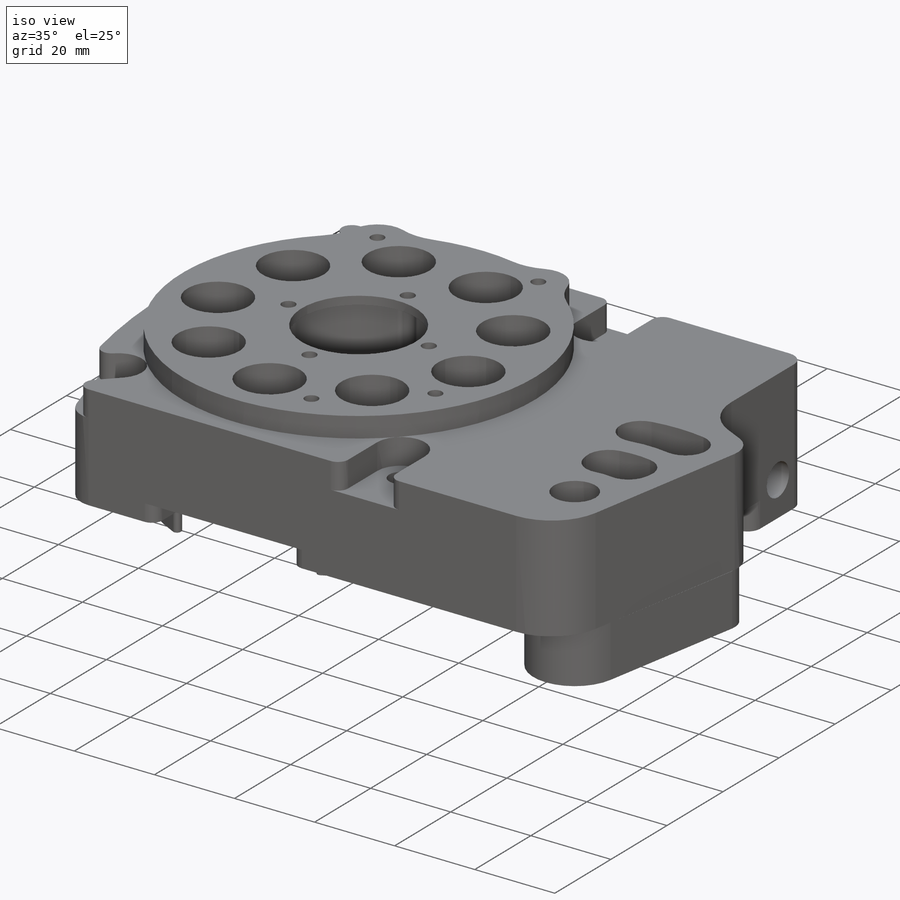
[diagram: iso view]
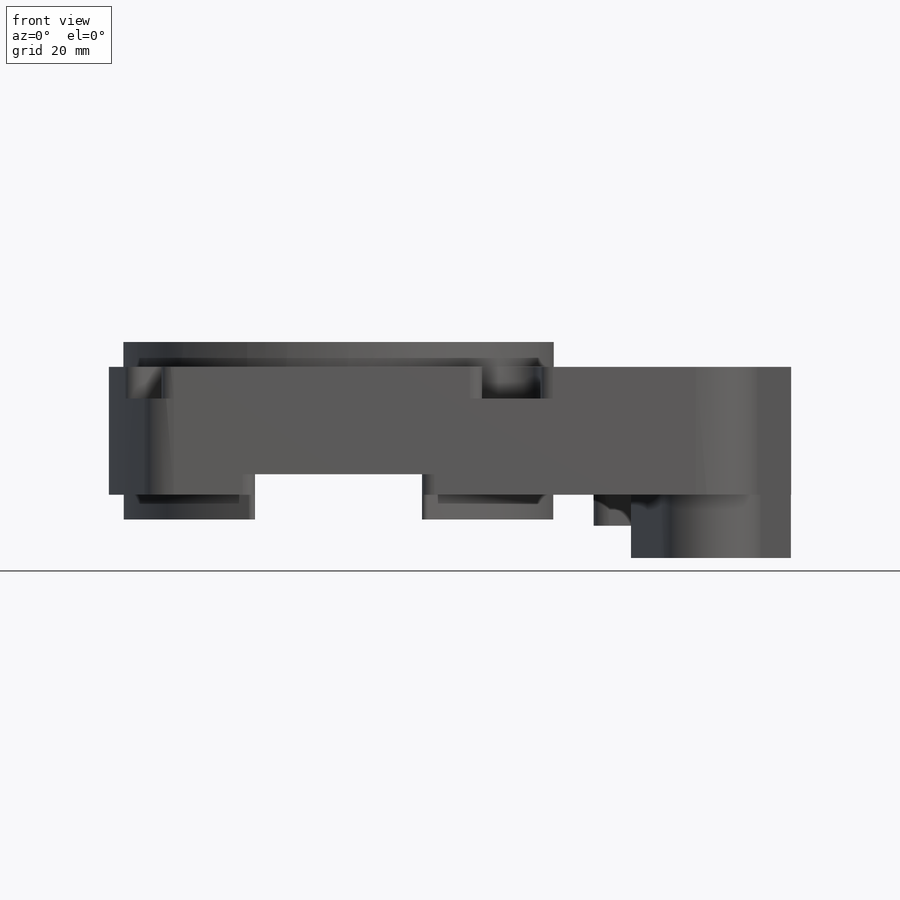
[diagram: front view]
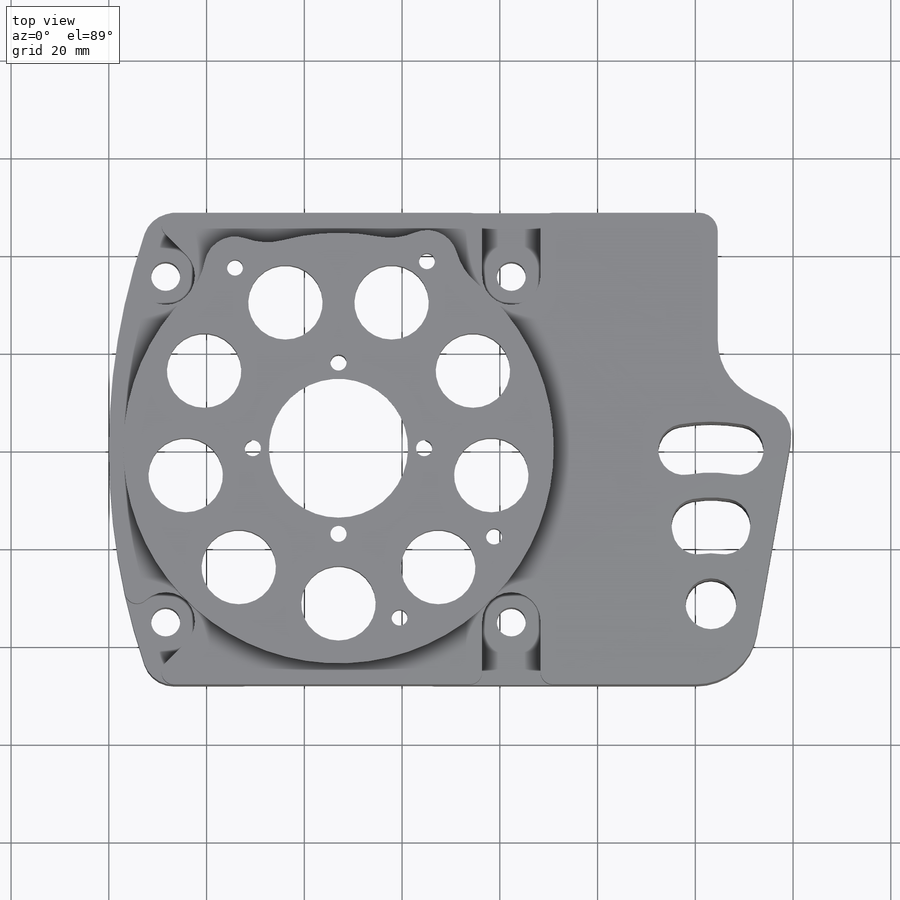
[diagram: top view]
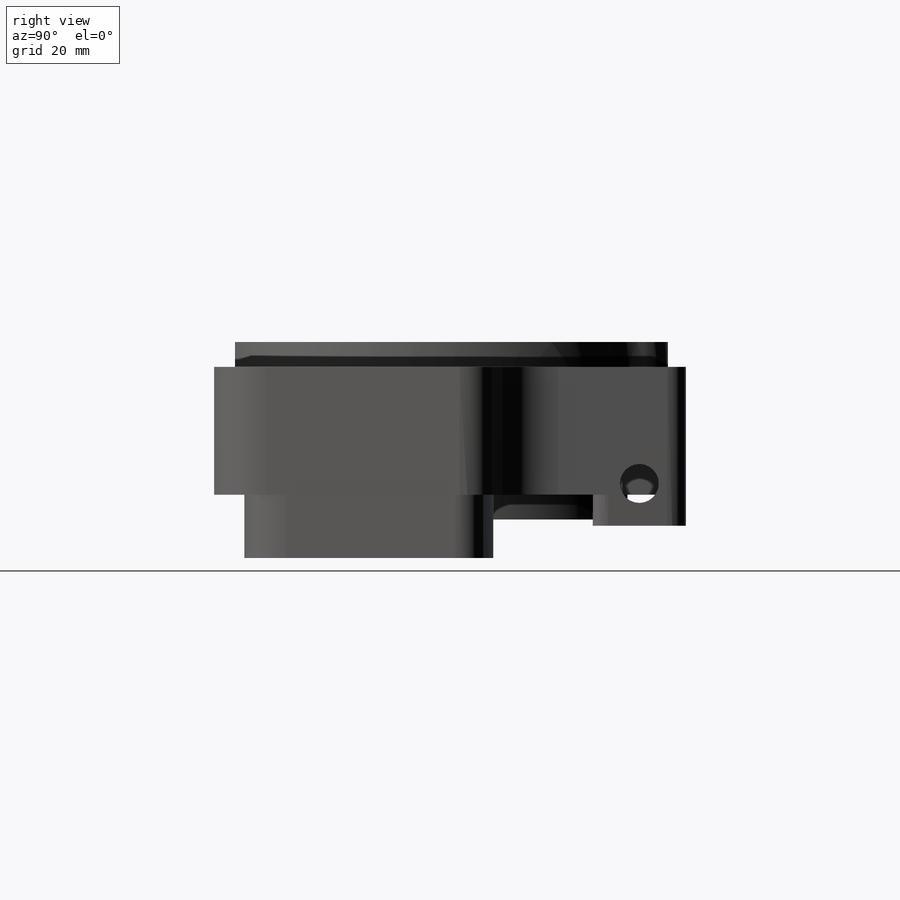
[diagram: right view]
SOLIDWORKS PART (.sldprt)
format: sldprt  version: not decoded by parser v0  size: 1,098,240 bytes
history: native  units: mm
features: sketch x29, cut_extrude x25, fillet x17, extrude x4, plane x2, material x1 (+15 scaffold rows collapsed)
feature tree (93):
  scaffold x15  (default folders/planes/origin — collapsed)
  material  "Material <not specified>"
  sketch  "Sketch1"  dims[D1=140.462mm D2=96.52mm]
  extrude  "Boss-Extrude1"  Depth=44.196mm
  sketch  "Sketch2"  dims[D1=28.448mm D2=46.99mm]
  cut_extrude  "Cut-Extrude1"  [1 undecoded]
  sketch  "Sketch3"  dims[D1=35.052mm]
  cut_extrude  "Cut-Extrude2"  Depth=2.032mm
  sketch  "Sketch4"  dims[D1=41.91mm D2=83.82mm]
  cut_extrude  "Cut-Extrude3"  Depth=11.938mm
  sketch  "Sketch5"  dims[D1=0.0mm]
  cut_extrude  "Cut-Extrude4"  Depth=17.018mm
  sketch  "Sketch6"  dims[c1.D1=87.884mm c1.D3=127.0mm c1.D4=87.884mm c1.D2=12.7mm c2.D3=54.61mm]
  cut_extrude  "Cut-Extrude5"  Depth=31.242mm
  sketch  "Sketch7"  dims[D1=0.0mm]
  cut_extrude  "Cut-Extrude6"  Depth=5.08mm
  sketch  "Sketch8"  dims[D1=34.163mm D2=47.244mm]
  cut_extrude  "Cut-Extrude7"  [1 undecoded]
  sketch  "Sketch9"
  cut_extrude  "Cut-Extrude8"  Depth=4.191mm
  sketch  "Sketch10"  dims[c1.D5=99.9998mm c1.D6=5.9436mm c1.D1=~39.760719mm c2.D1=90.0deg c2.D2=~40.941954mm c3.D2=90.0deg c3.D3=~43.114033mm c4.D3=90.0deg c4.D4=~39.23447mm c5.D4=90.0deg]
  cut_extrude  "Cut-Extrude9"  [1 undecoded]
  sketch  "Sketch11"  dims[D1=88.0618mm D2=0.0mm]
  cut_extrude  "Cut-Extrude10"  Depth=5.08mm
  sketch  "Sketch12"  dims[D1=11.938mm D2=11.938mm D3=11.938mm D4=11.938mm]
  cut_extrude  "Cut-Extrude11"  Depth=19.685mm
  sketch  "Sketch13"  dims[D1=63.5mm D2=15.24mm D3=9.0]
  cut_extrude  "Cut-Extrude12"  [1 undecoded]
  sketch  "Sketch14"  dims[c1.D1=28.448mm c1.D2=28.448mm c1.D3=10.4902mm c1.D4=20.6502mm c1.D7=40.64mm c2.D1=76.2mm c2.D2=31.75mm c2.D5=~69.621179mm c3.D5=20.0deg c4.D5=~81.606567mm c5.D5=10.0deg c5.D6=76.2mm c6.D6=10.0deg c6.D9=~30.734593mm c7.D6=~32.433609deg c7.D8=0.0mm]
  cut_extrude  "Cut-Extrude13"  [1 undecoded]
  sketch  "Sketch15"  dims[D1=10.414mm]
  fillet  "Fillet17"  Radius=3.175mm
  cut_extrude  "Cut-Extrude14"  [1 undecoded]
  sketch  "Sketch16"  dims[c1.D1=20.6502mm c1.D2=43.5102mm c1.D3=53.6702mm c2.D1=11.43mm c2.D2=5.08mm c2.D3=10.414mm]
  cut_extrude  "Cut-Extrude15"  [1 undecoded]
  fillet  "Fillet3"  Radius=5.207mm
  fillet  "Fillet4"  Radius=5.08mm
  sketch  "Sketch17"  dims[D1=57.15mm D2=22.86mm]
  cut_extrude  "Cut-Extrude16"  [1 undecoded]
  fillet  "Fillet6"  Radius=2.54mm
  plane  "Plane1"
  plane  "Plane2"  Offset=74.93mm
  sketch  "Sketch18"  dims[D1=17.272mm D2=2.032mm D3=33.02mm]
  extrude  "Boss-Extrude2"  [1 undecoded]
  sketch  "Sketch19"  dims[c1.D1=12.7mm c1.D3=6.35mm c1.D2=15.875mm c2.D3=~9.666306mm c2.D4=96.52mm c3.D4=~9.877351deg]
  cut_extrude  "Cut-Extrude17"  [1 undecoded]
  sketch  "Sketch22"  dims[D3=3.175mm D1=25.4mm D2=19.05mm]
  extrude  "Boss-Extrude6"  Depth=6.35mm
  sketch  "Sketch21"  dims[D2=7.9375mm D1=15.24mm D3=9.525mm]
  cut_extrude  "Cut-Extrude18"  Depth=25.4mm
  fillet  "Fillet7"  Radius=12.7mm
  sketch  "Sketch26"  dims[c1.D2=3.81mm c1.D1=10.16mm c2.D2=~13.031038mm]
  cut_extrude  "Cut-Extrude22"  Depth=7.62mm
  fillet  "Fillet8"  Radius=3.175mm
  sketch  "Sketch27"  dims[D1=3.302mm]
  cut_extrude  "Cut-Extrude24"  [1 undecoded]
  sketch  "Sketch28"  dims[c1.D5=~73.71588mm c1.D6=3.2639mm c1.D7=~73.20788mm c1.D8=~84.62772mm c1.D9=~85.13572mm c1.D1=~101.888904mm c2.D1=29.5951deg c2.D2=~101.888904mm c3.D2=70.1926deg c3.D3=~101.888904mm c4.D3=64.6846deg c4.D4=~101.888904mm c5.D4=119.823deg]
  cut_extrude  "Cut-Extrude25"  [1 undecoded]
  sketch  "Sketch29"  dims[D1=12.7mm]
  extrude  "Boss-Extrude8"  [1 undecoded]
  fillet  "Fillet11"  Radius=12.7mm
  sketch  "Sketch30"  dims[D1=7.62mm]
  cut_extrude  "Cut-Extrude26"  [1 undecoded]
  sketch  "Sketch31"
  cut_extrude  "Cut-Extrude27"  [1 undecoded]
  sketch  "Sketch32"
  cut_extrude  "Cut-Extrude28"  [1 undecoded]
  fillet  "Fillet14"  Radius=0.889mm
  fillet  "Fillet19"  Radius=2.38125mm
  fillet  "Fillet23"  Radius=2.54mm
  fillet  "Fillet20"  Radius=2.54mm
  sketch  "Sketch35"  dims[D2=273.0246mm D1=136.525mm]
  cut_extrude  "Cut-Extrude29"  [1 undecoded]
  fillet  "Fillet24"  Radius=2.54mm
  fillet  "Fillet25"  Radius=2.54mm
  fillet  "Fillet26"  Radius=2.54mm
  fillet  "Fillet27"  Radius=6.35mm
  fillet  "Fillet28"  Radius=1.27mm
  fillet  "Fillet29"  Radius=3.81mm
decode coverage: 55 of 75 modeling features carry decoded parameters
note: ~ marks probable driven/reference dimensions
note: 17 parameter values undecoded
summary: no parameter record found for 17 features
note: suppression state not decoded; provenance and decode notes live in map.json
